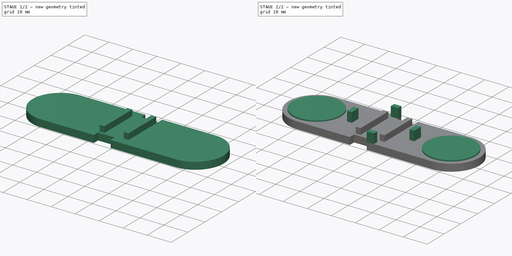
[diagram: build sequence overview — one tinted view per stage of 2, left to right]
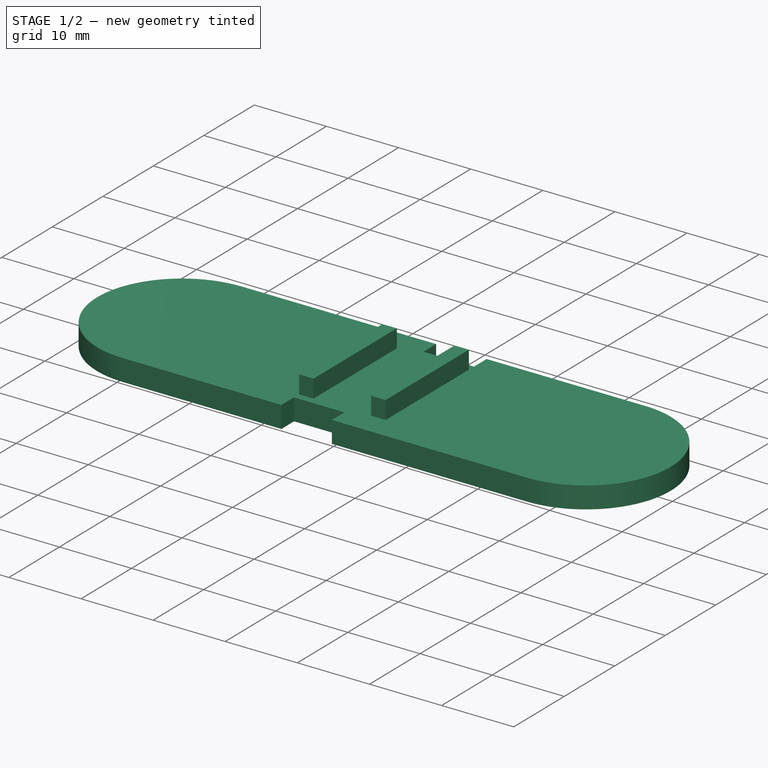
[diagram: stage 1 of 2 — iso view after this stage's code; geometry added in this stage tinted green]
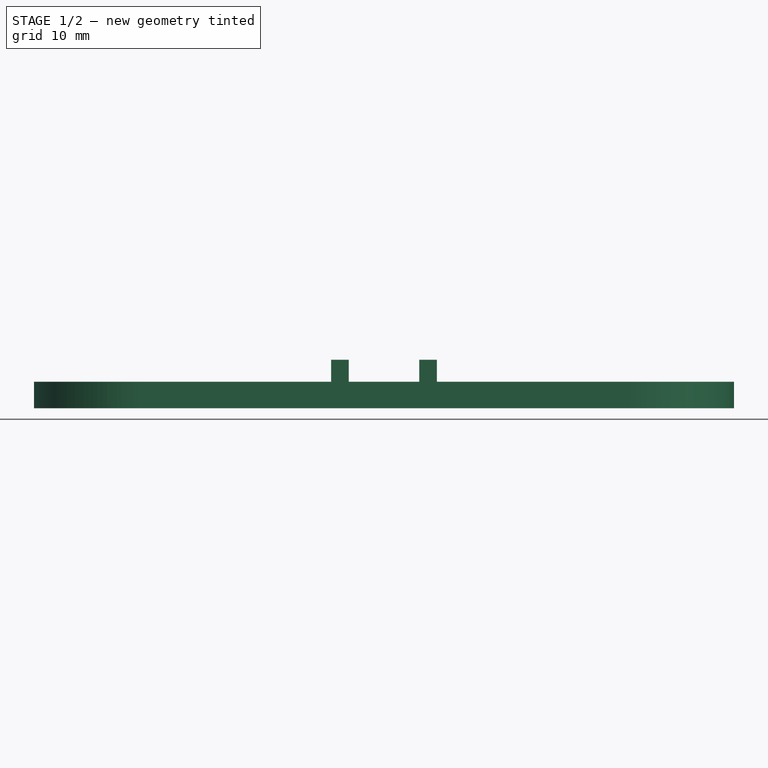
[diagram: stage 1 of 2 — front view after this stage's code; geometry added in this stage tinted green]
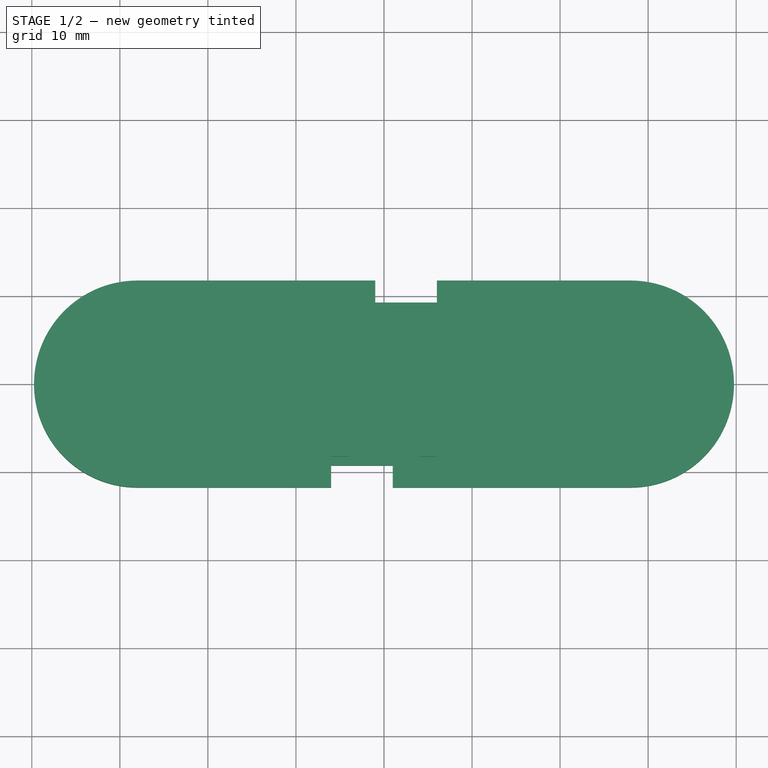
[diagram: stage 1 of 2 — top view after this stage's code; geometry added in this stage tinted green]
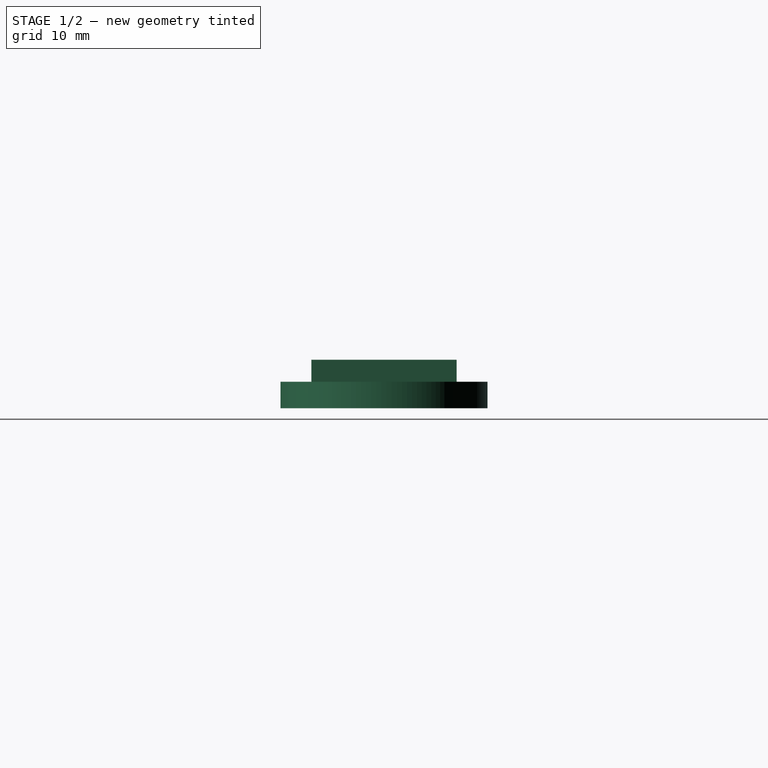
[diagram: stage 1 of 2 — right view after this stage's code; geometry added in this stage tinted green]
FCSTD DOCUMENT  (FreeCAD 0.20R29603 (Git))
Label: ConnectorHandler
License: All rights reserved
LicenseURL: http://en.wikipedia.org/wiki/All_rights_reserved
objects: Sketcher::SketchObject×4, PartDesign::Pad×4, PartDesign::Body×1
note: 13 computed .brp shape members not serialized (recipe doc carries the construction recipe); baked Part::Feature solids carry a one-line shape summary decoded from their .brp

FEATURE [Sketcher::SketchObject] Sketch
  FullyConstrained = true
  MapMode = 5
  Support = -> [XY_Plane]
  sketch-geometry (13):
    g0: LineSegment StartX=-6 StartY=-9.25 StartZ=0 EndX=1 EndY=-9.25 EndZ=0
    g1: LineSegment StartX=6 StartY=9.25 StartZ=0 EndX=-1 EndY=9.25 EndZ=0
    g2: GeomPoint X=0 Y=0 Z=0
    g3: LineSegment StartX=-1 StartY=9.25 StartZ=0 EndX=-1 EndY=11.75 EndZ=0
    g4: LineSegment StartX=-1 StartY=11.75 StartZ=0 EndX=-28 EndY=11.75 EndZ=0
    g5: LineSegment StartX=1 StartY=-11.75 StartZ=0 EndX=28 EndY=-11.75 EndZ=0
    g6: LineSegment StartX=1 StartY=-11.75 StartZ=0 EndX=1 EndY=-9.25 EndZ=0
    g7: LineSegment StartX=6 StartY=9.25 StartZ=0 EndX=6 EndY=11.75 EndZ=0
    g8: LineSegment StartX=6 StartY=11.75 StartZ=0 EndX=28 EndY=11.75 EndZ=0
    g9: LineSegment StartX=-6 StartY=-9.25 StartZ=0 EndX=-6 EndY=-11.75 EndZ=0
    g10: LineSegment StartX=-6 StartY=-11.75 StartZ=0 EndX=-28 EndY=-11.75 EndZ=0
    g11: ArcOfCircle CenterX=28 CenterY=0 CenterZ=0 NormalX=0 NormalY=0 NormalZ=1 AngleXU=0 Radius=11.75 StartAngle=4.71239 EndAngle=7.85398
    g12: ArcOfCircle CenterX=-28 CenterY=0 CenterZ=0 NormalX=0 NormalY=0 NormalZ=1 AngleXU=0 Radius=11.75 StartAngle=1.5708 EndAngle=4.71239
  constraints (36):
    c: Horizontal(g0)
    c: Horizontal(g1)
    c: Coincident(g2,g-1)
    c: DistanceX(g4,g8) = 56
    c: DistanceY(g5,g8) = 23.5
    c: Coincident(g3,g4)
    c: Horizontal(g4)
    c: Vertical(g3)
    c: Horizontal(g5)
    c: Symmetric(g5,g3,g2)
    c: Coincident(g6,g5)
    c: Vertical(g6)
    c: Coincident(g6,g0)
    c: Coincident(g3,g1)
    c: Coincident(g7,g8)
    c: Horizontal(g8)
    c: Vertical(g7)
    c: Coincident(g9,g10)
    c: Horizontal(g10)
    c: Vertical(g9)
    c: Symmetric(g1,g0,g2)
    c: Coincident(g1,g7)
    c: DistanceY(g7,g7) = 2.5
    c: Coincident(g9,g0)
    c: Symmetric(g10,g8,g2)
    c: DistanceY(g6,g6) = 2.5
    c: PointOnObject(g11,g-1)
    c: Coincident(g11,g8)
    c: Coincident(g11,g5)
    c: Radius(g11) = 11.75
    c: PointOnObject(g12,g-1)
    c: Coincident(g12,g4)
    c: Coincident(g12,g10)
    c: Radius(g12) = 11.75
    c: DistanceX(g1,g1) = 7
    c: DistanceX(g1) = -1
FEATURE [PartDesign::Pad] Pad
  Direction = (0,0,1)
  Length = 3
  Length2 = 10
  Profile = -> Sketch
  ReferenceAxis = -> Sketch [N_Axis]
  Type = 0
FEATURE [Sketcher::SketchObject] Sketch001
  FullyConstrained = true
  MapMode = 5
  Placement = pos=(0,0,3) rot=(0,0,1;0rad)
  Support = -> [Pad]
  sketch-geometry (8):
    g0: LineSegment StartX=-4 StartY=-8.25 StartZ=0 EndX=-6 EndY=-8.25 EndZ=0
    g1: LineSegment StartX=-6 StartY=-8.25 StartZ=0 EndX=-6 EndY=8.25 EndZ=0
    g2: LineSegment StartX=-6 StartY=8.25 StartZ=0 EndX=-4 EndY=8.25 EndZ=0
    g3: LineSegment StartX=-4 StartY=8.25 StartZ=0 EndX=-4 EndY=-8.25 EndZ=0
    g4: LineSegment StartX=4 StartY=8.25 StartZ=0 EndX=6 EndY=8.25 EndZ=0
    g5: LineSegment StartX=6 StartY=8.25 StartZ=0 EndX=6 EndY=-8.25 EndZ=0
    g6: LineSegment StartX=6 StartY=-8.25 StartZ=0 EndX=4 EndY=-8.25 EndZ=0
    g7: LineSegment StartX=4 StartY=-8.25 StartZ=0 EndX=4 EndY=8.25 EndZ=0
  constraints (22):
    c: Coincident(g0,g1)
    c: Coincident(g1,g2)
    c: Coincident(g2,g3)
    c: Coincident(g3,g0)
    c: Horizontal(g0)
    c: Horizontal(g2)
    c: Vertical(g1)
    c: Coincident(g4,g5)
    c: Coincident(g5,g6)
    c: Coincident(g6,g7)
    c: Coincident(g7,g4)
    c: Horizontal(g4)
    c: Horizontal(g6)
    c: Vertical(g5)
    c: Vertical(g7)
    c: Symmetric(g2,g0,g-1)
    c: DistanceX(g2,g2) = 2
    c: DistanceX(g4,g4) = 2
    c: DistanceY(g1,g1) = 16.5
    c: DistanceY(g5,g5) = 16.5
    c: DistanceX(g2) = -4
    c: Symmetric(g4,g2,g-2)
FEATURE [PartDesign::Pad] Pad001
  BaseFeature = -> Pad
  Direction = (0,0,1)
  Length = 2.5
  Length2 = 10
  Profile = -> Sketch001
  ReferenceAxis = -> Sketch001 [N_Axis]
  Type = 0
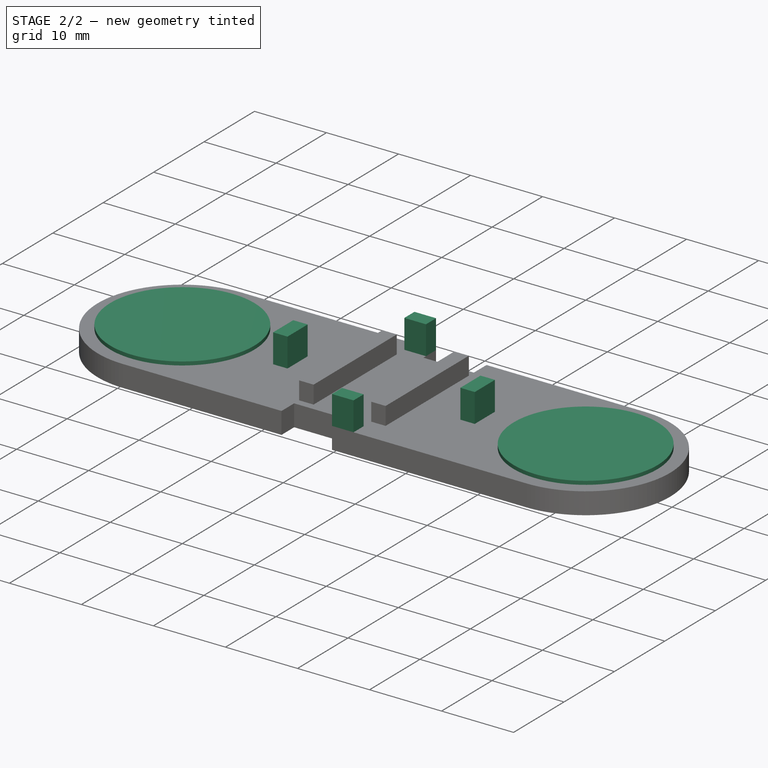
[diagram: stage 2 of 2 — iso view after this stage's code; geometry added in this stage tinted green]
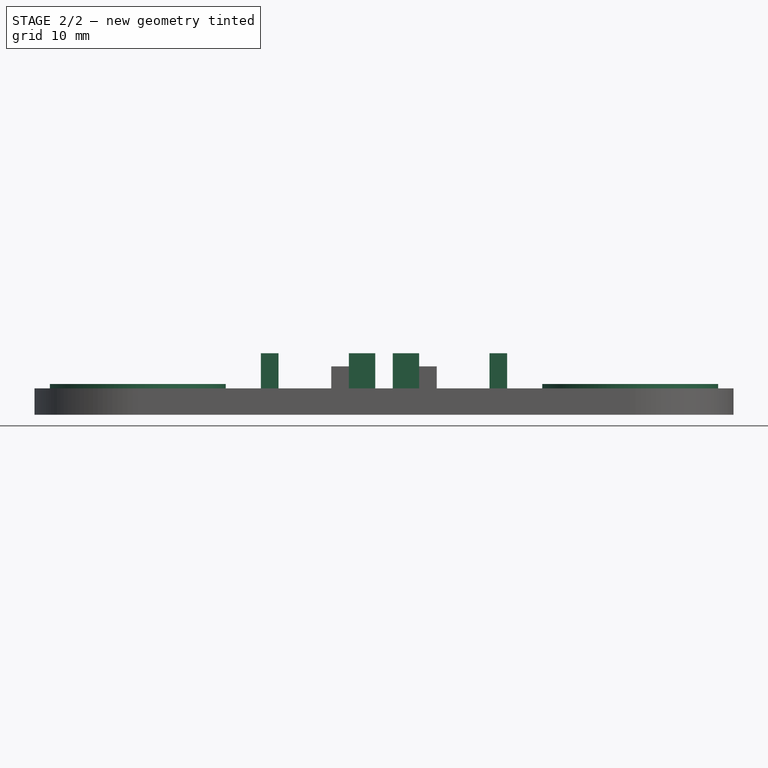
[diagram: stage 2 of 2 — front view after this stage's code; geometry added in this stage tinted green]
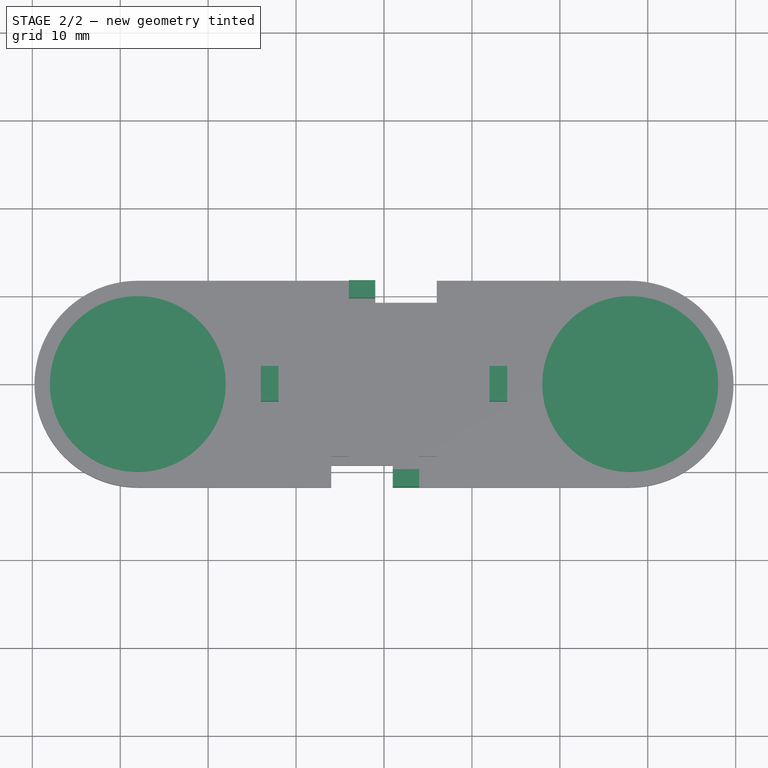
[diagram: stage 2 of 2 — top view after this stage's code; geometry added in this stage tinted green]
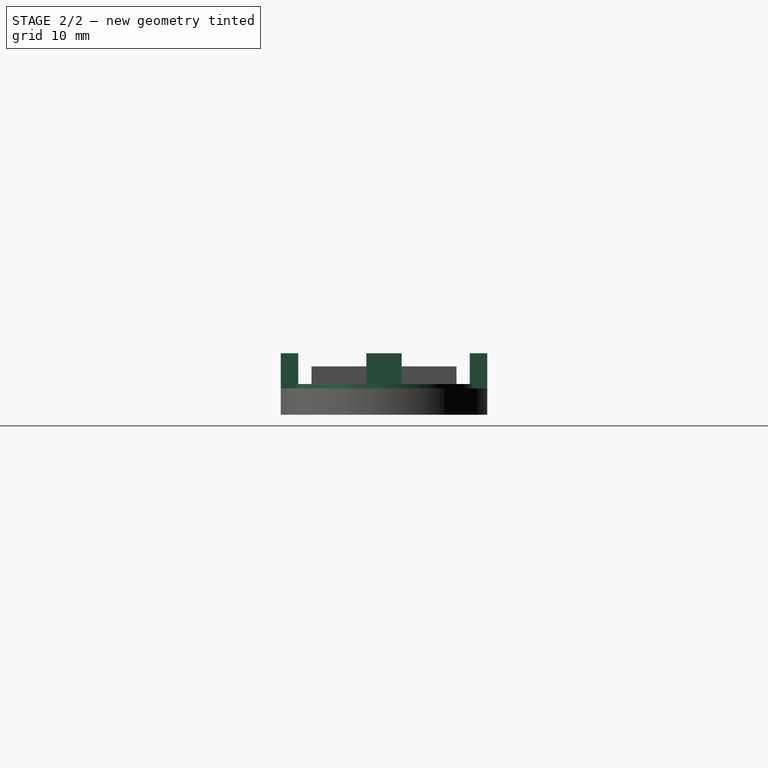
[diagram: stage 2 of 2 — right view after this stage's code; geometry added in this stage tinted green]
FEATURE [Sketcher::SketchObject] Sketch002
  FullyConstrained = true
  MapMode = 5
  Placement = pos=(0,0,3) rot=(0,0,1;0rad)
  Support = -> [Pad001]
  sketch-geometry (16):
    g0: LineSegment StartX=-14 StartY=2 StartZ=0 EndX=-12 EndY=2 EndZ=0
    g1: LineSegment StartX=-12 StartY=2 StartZ=0 EndX=-12 EndY=-2 EndZ=0
    g2: LineSegment StartX=-12 StartY=-2 StartZ=0 EndX=-14 EndY=-2 EndZ=0
    g3: LineSegment StartX=-14 StartY=-2 StartZ=0 EndX=-14 EndY=2 EndZ=0
    g4: LineSegment StartX=12 StartY=-2 StartZ=0 EndX=14 EndY=-2 EndZ=0
    g5: LineSegment StartX=14 StartY=-2 StartZ=0 EndX=14 EndY=2 EndZ=0
    g6: LineSegment StartX=14 StartY=2 StartZ=0 EndX=12 EndY=2 EndZ=0
    g7: LineSegment StartX=12 StartY=2 StartZ=0 EndX=12 EndY=-2 EndZ=0
    g8: LineSegment StartX=-4 StartY=11.75 StartZ=0 EndX=-1 EndY=11.75 EndZ=0
    g9: LineSegment StartX=-1 StartY=11.75 StartZ=0 EndX=-1 EndY=9.75 EndZ=0
    g10: LineSegment StartX=-1 StartY=9.75 StartZ=0 EndX=-4 EndY=9.75 EndZ=0
    g11: LineSegment StartX=-4 StartY=9.75 StartZ=0 EndX=-4 EndY=11.75 EndZ=0
    g12: LineSegment StartX=4 StartY=-9.75 StartZ=0 EndX=1 EndY=-9.75 EndZ=0
    g13: LineSegment StartX=1 StartY=-9.75 StartZ=0 EndX=1 EndY=-11.75 EndZ=0
    g14: LineSegment StartX=1 StartY=-11.75 StartZ=0 EndX=4 EndY=-11.75 EndZ=0
    g15: LineSegment StartX=4 StartY=-11.75 StartZ=0 EndX=4 EndY=-9.75 EndZ=0
  constraints (42):
    c: Coincident(g0,g1)
    c: Coincident(g1,g2)
    c: Coincident(g2,g3)
    c: Coincident(g3,g0)
    c: Horizontal(g0)
    c: Horizontal(g2)
    c: Vertical(g3)
    c: Coincident(g4,g5)
    c: Coincident(g5,g6)
    c: Coincident(g6,g7)
    c: Coincident(g7,g4)
    c: Horizontal(g4)
    c: Vertical(g5)
    c: Symmetric(g0,g6,g-2)
    c: Symmetric(g0,g5,g-2)
    c: DistanceX(g0,g0) = 2
    c: DistanceX(g0) = -12
    c: Symmetric(g0,g1,g-1)
    c: DistanceY(g1,g1) = 4
    c: Symmetric(g4,g1,g-2)
    c: Coincident(g8,g9)
    c: Coincident(g9,g10)
    c: Coincident(g10,g11)
    c: Coincident(g11,g8)
    c: Horizontal(g8)
    c: Horizontal(g10)
    c: Vertical(g9)
    c: Vertical(g11)
    c: Coincident(g12,g13)
    c: Coincident(g13,g14)
    c: Coincident(g14,g15)
    c: Coincident(g15,g12)
    c: Horizontal(g12)
    c: Horizontal(g14)
    c: Vertical(g13)
    c: Vertical(g15)
    c: Symmetric(g12,g10,g-1)
    c: Symmetric(g8,g13,g-1)
    c: DistanceY(g11,g11) = 2
    c: DistanceX(g8,g8) = 3
    c: DistanceY(g8) = 11.75
    c: DistanceX(g8) = -1
FEATURE [PartDesign::Pad] Pad002
  BaseFeature = -> Pad001
  Direction = (0,0,1)
  Length = 4
  Length2 = 10
  Profile = -> Sketch002
  ReferenceAxis = -> Sketch002 [N_Axis]
  Type = 0
FEATURE [Sketcher::SketchObject] Sketch003
  FullyConstrained = true
  MapMode = 5
  Placement = pos=(0,0,3) rot=(0,0,1;0rad)
  Support = -> [Pad002]
  sketch-geometry (2):
    g0: Circle CenterX=-28 CenterY=0 CenterZ=0 NormalX=0 NormalY=0 NormalZ=1 AngleXU=0 Radius=10
    g1: Circle CenterX=28 CenterY=0 CenterZ=0 NormalX=0 NormalY=0 NormalZ=1 AngleXU=0 Radius=10
  constraints (5):
    c: PointOnObject(g0,g-1)
    c: Diameter(g0) = 20
    c: DistanceX(g0) = -28
    c: Diameter(g1) = 20
    c: Symmetric(g1,g0,g-1)
FEATURE [PartDesign::Pad] Pad003
  BaseFeature = -> Pad002
  Direction = (0,0,1)
  Length = 0.5
  Length2 = 10
  Profile = -> Sketch003
  ReferenceAxis = -> Sketch003 [N_Axis]
  Type = 0
FEATURE [PartDesign::Body] Body
  Group = -> [Sketch,Pad,Sketch001,Sketch002,Pad001,Pad002,Sketch003,Pad003]
  Origin = -> Origin
  Tip = -> Pad003
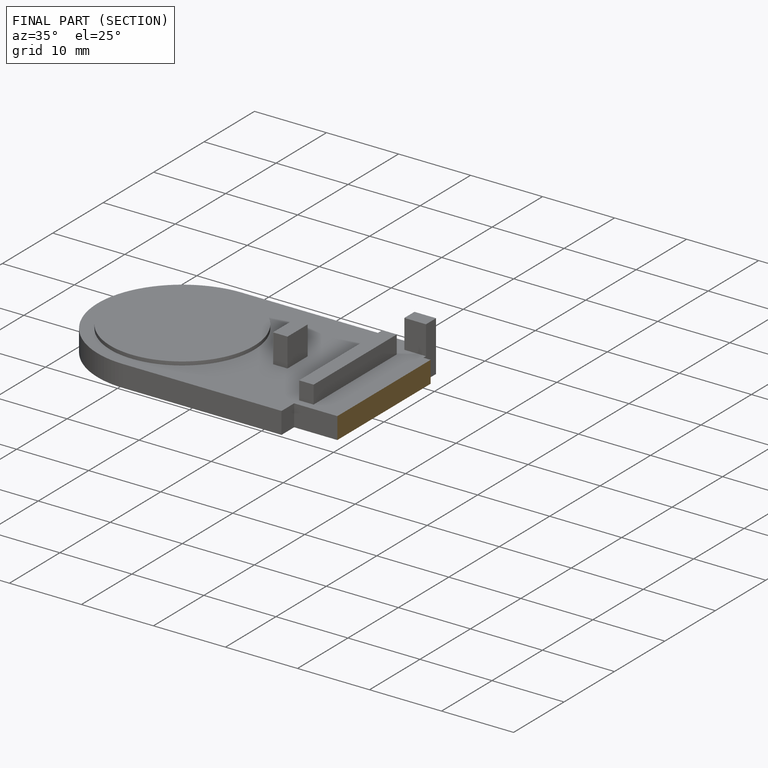
[diagram: finished part — half-section view (interior)]
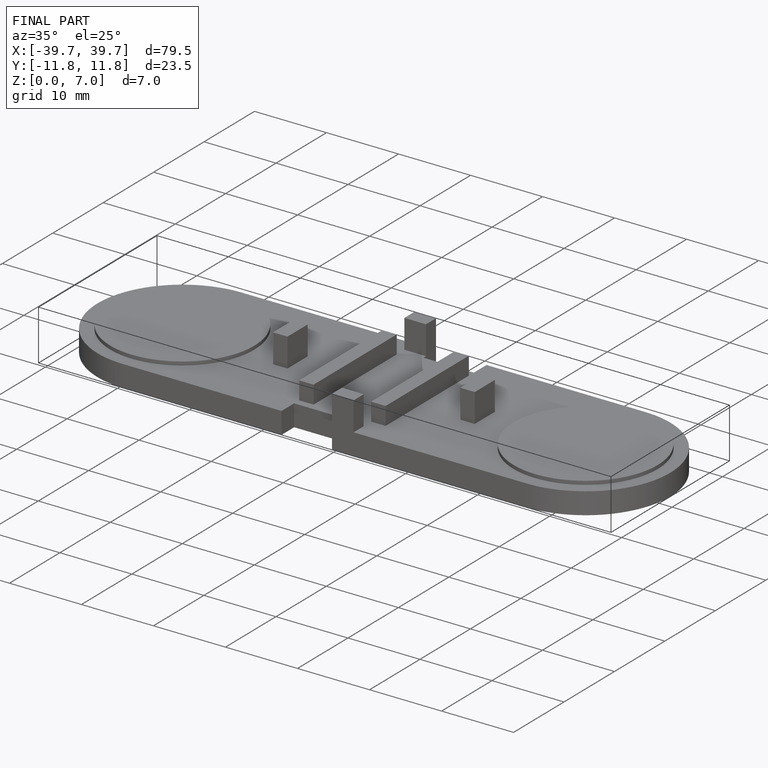
[diagram: finished part — iso view with bounding-box wireframe]
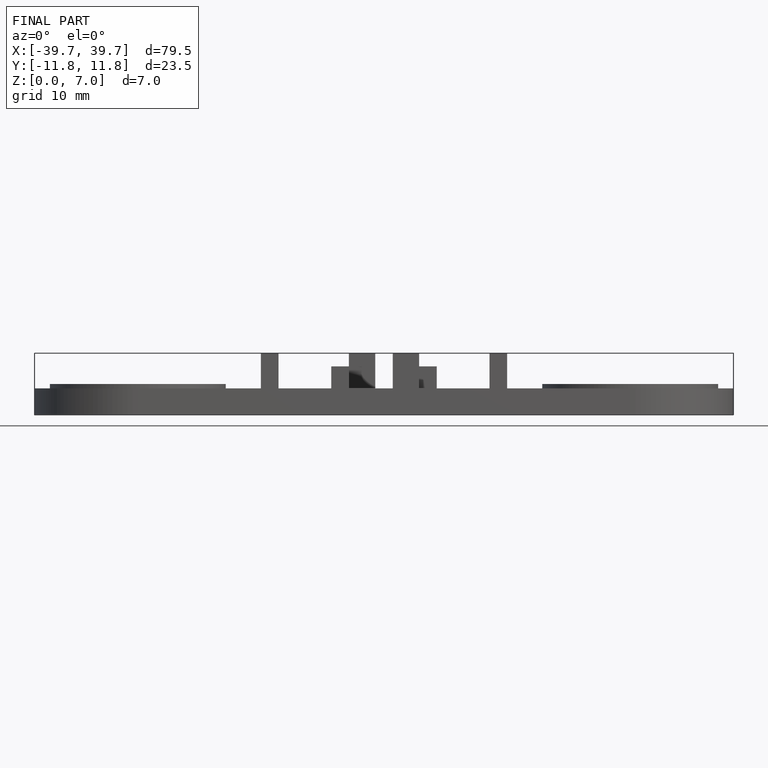
[diagram: finished part — front view with bounding-box wireframe]
